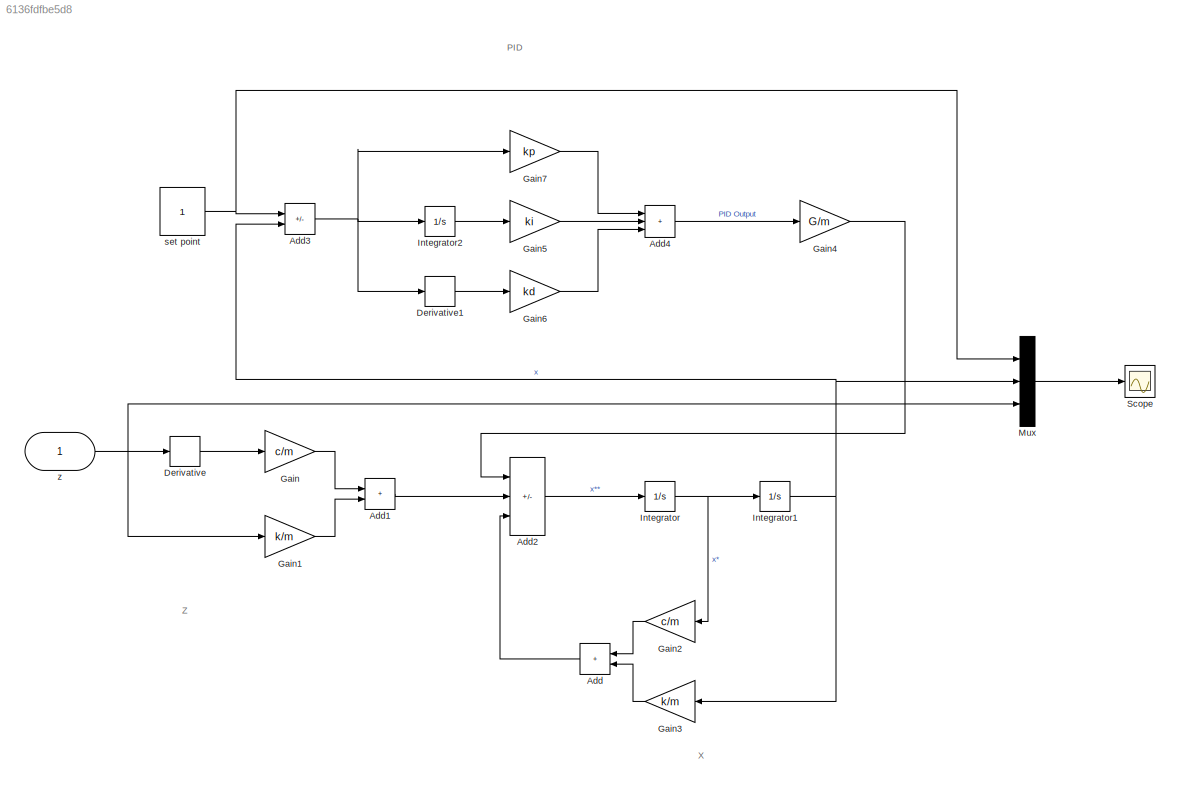
MODEL slx_6136fdfbe5d8
KIND model
CONFIG AbsTol = auto
CONFIG EnableMultiTasking = off
CONFIG FixedStep = auto
CONFIG MaxStep = auto
CONFIG MinStep = auto
CONFIG RelTol = 1e-3
CONFIG SampleTimeConstraint = Unconstrained
CONFIG SolverName = VariableStepAuto
CONFIG StartTime = 0.0
CONFIG StopTime = 10.0
BLOCK [Sum] Add
  IconShape = rectangular
BLOCK [Sum] Add1
  IconShape = rectangular
BLOCK [Sum] Add2
  IconShape = rectangular
  Inputs = ++-
BLOCK [Sum] Add3
  IconShape = rectangular
  Inputs = +-
BLOCK [Sum] Add4
  IconShape = rectangular
  Inputs = +++
BLOCK [Derivative] Derivative
BLOCK [Derivative] Derivative1
BLOCK [Gain] Gain
  Gain = c/m
BLOCK [Gain] Gain1
  Gain = k/m
BLOCK [Gain] Gain2
  Gain = c/m
BLOCK [Gain] Gain3
  Gain = k/m
BLOCK [Gain] Gain4
  Gain = G/m
BLOCK [Gain] Gain5
  Gain = ki
BLOCK [Gain] Gain6
  Gain = kd
BLOCK [Gain] Gain7
  Gain = kp
BLOCK [Integrator] Integrator
BLOCK [Integrator] Integrator1
BLOCK [Integrator] Integrator2
BLOCK [Mux] Mux
  DisplayOption = bar
  Inputs = 3
BLOCK [Scope] Scope
  ActiveDisplayYMaximum = 2.7416007571594685
  ActiveDisplayYMinimum = -2.1876786977184919
  ContainerLayout = {"WindowBounds":[-7,-7,1550,878]}
  Floating = off
  GraphicalSettings = {"AxesScalingProperties":{"AlignXAxis":"Center","AlignYAxis":"Center","AutoScaleXAxisLimits":false,"AxesScaling":"Manual","AxesScalingNumUpdates":10,"ExpandOnly":true,"ScaleAxesLimitsAtStop":false,"XAxisDataRange":100,"YAxisDataRange":80},"DisplayProperties":{"ColorOrder":["auto","auto","auto","auto","auto","auto","auto","auto","auto","auto","auto","auto","auto","auto","auto","auto","auto","auto",...<+2216ch>
  MultipleDisplayCache = [{"MaxYLimMag":1.4958457420516722,"MaxYLimReal":2.7416007571594685,"MinYLimMag":0,"MinYLimReal":-2.1876786977184919,"PlotAsMagnitudePhase":false,"ShowGrid":true,"ShowLegend":true,"Title":"%<SignalLabel>","YLabel":""}]
  NumInputPorts = 1
  ScopeFrameLocation = container
  ShowLegend = on
  Visible = on
  WasSavedAsWebScope = on
  WindowPosition = [1.000000,1.000000,1536.000000,841.000000,]
BLOCK [Constant] set point
BLOCK [Inport] z
ANNOTATION (root): PID
ANNOTATION (root): X
ANNOTATION (root): Z
LINE Add1:1 -> Add2:2
LINE Add2:1 -> Integrator:1
NET Add3:1 -> Derivative1:1, Gain7:1, Integrator2:1
LINE Add4:1 -> Gain4:1
LINE Add:1 -> Add2:3
LINE Derivative1:1 -> Gain6:1
LINE Derivative:1 -> Gain:1
LINE Gain1:1 -> Add1:2
LINE Gain2:1 -> Add:1
LINE Gain3:1 -> Add:2
LINE Gain4:1 -> Add2:1
LINE Gain5:1 -> Add4:2
LINE Gain6:1 -> Add4:3
LINE Gain7:1 -> Add4:1
LINE Gain:1 -> Add1:1
NET Integrator1:1 -> Add3:2, Gain3:1, Mux:2
LINE Integrator2:1 -> Gain5:1
NET Integrator:1 -> Gain2:1, Integrator1:1
LINE Mux:1 -> Scope:1
NET set point:1 -> Add3:1, Mux:1
NET z:1 -> Derivative:1, Gain1:1, Mux:3
note: NET lines group one-source signal fan-out (src -> all destinations, sorted); 1:1 wires keep LINE
